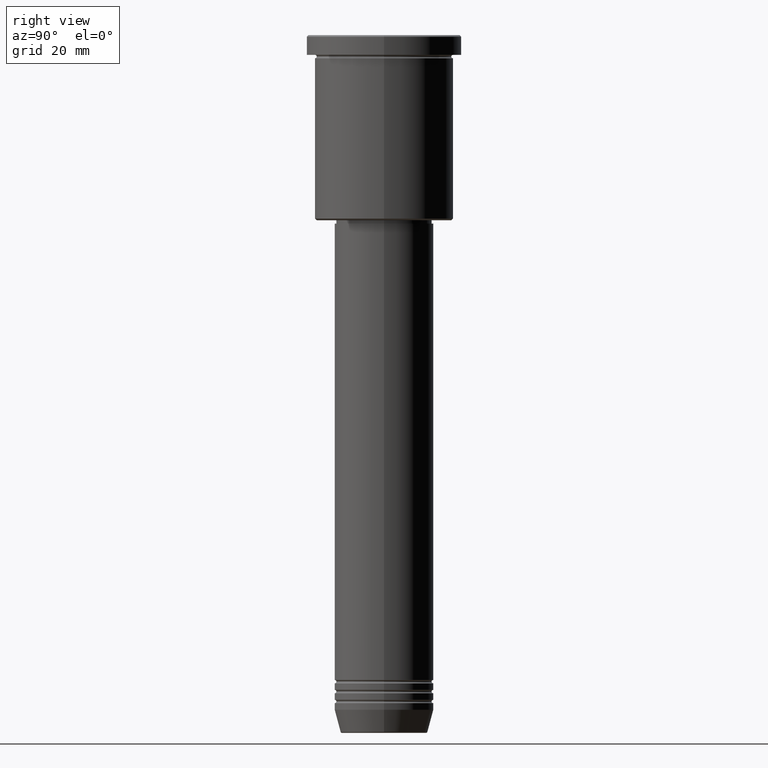
[diagram: clean part render]
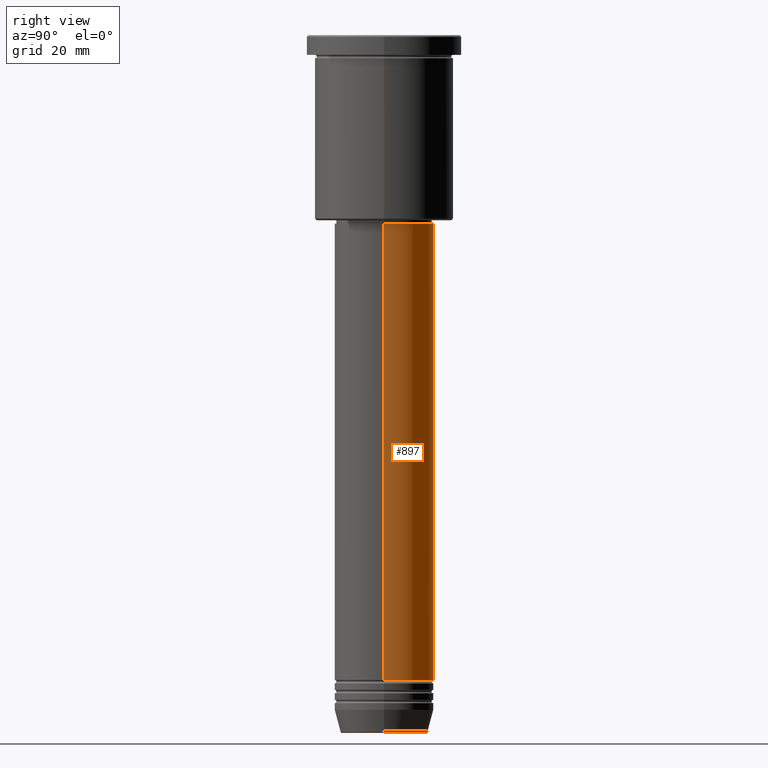
[diagram: same view with one face highlighted and labeled with its STEP entity id]
A machine part, right view. The second image highlights one B-rep face of the part: STEP entity #897.
In plain terms, the highlighted cylindrical surface (partial cylindrical patch) has radius 15 mm, axis along (-0, -0, 1).
Its self-contained STEP definition (entity closure, byte-faithful):
#38 = CIRCLE ( 'NONE', #812, 15.00000000000000000 ) ;
#42 = VERTEX_POINT ( 'NONE', #101 ) ;
#76 = FACE_OUTER_BOUND ( 'NONE', #761, .T. ) ;
#97 = ORIENTED_EDGE ( 'NONE', *, *, #362, .F. ) ;
#101 = CARTESIAN_POINT ( 'NONE',  ( -15.00000000000000000, 1.836970198721029589E-15, -194.9999999999999716 ) ) ;
#129 = DIRECTION ( 'NONE',  ( -0.000000000000000000, -0.000000000000000000, 1.000000000000000000 ) ) ;
#142 = ORIENTED_EDGE ( 'NONE', *, *, #359, .T. ) ;
#151 = LINE ( 'NONE', #628, #1124 ) ;
#165 = DIRECTION ( 'NONE',  ( -0.000000000000000000, -0.000000000000000000, 1.000000000000000000 ) ) ;
#177 = DIRECTION ( 'NONE',  ( 1.000000000000000000, 0.000000000000000000, 0.000000000000000000 ) ) ;
#250 = DIRECTION ( 'NONE',  ( -0.000000000000000000, -0.000000000000000000, 1.000000000000000000 ) ) ;
#359 = EDGE_CURVE ( 'NONE', #779, #42, #969, .T. ) ;
#362 = EDGE_CURVE ( 'NONE', #779, #506, #151, .T. ) ;
#407 = DIRECTION ( 'NONE',  ( 1.000000000000000000, 0.000000000000000000, 0.000000000000000000 ) ) ;
#461 = AXIS2_PLACEMENT_3D ( 'NONE', #792, #250, #972 ) ;
#506 = VERTEX_POINT ( 'NONE', #1152 ) ;
#578 = AXIS2_PLACEMENT_3D ( 'NONE', #978, #165, #177 ) ;
#624 = EDGE_CURVE ( 'NONE', #42, #1158, #665, .T. ) ;
#625 = CYLINDRICAL_SURFACE ( 'NONE', #578, 15.00000000000000000 ) ;
#628 = CARTESIAN_POINT ( 'NONE',  ( 15.00000000000000000, 0.000000000000000000, 0.000000000000000000 ) ) ;
#665 = LINE ( 'NONE', #742, #989 ) ;
#742 = CARTESIAN_POINT ( 'NONE',  ( -15.00000000000000000, 1.836970198721029589E-15, 0.000000000000000000 ) ) ;
#761 = EDGE_LOOP ( 'NONE', ( #142, #871, #1105, #97 ) ) ;
#766 = EDGE_CURVE ( 'NONE', #506, #1158, #38, .T. ) ;
#779 = VERTEX_POINT ( 'NONE', #1141 ) ;
#792 = CARTESIAN_POINT ( 'NONE',  ( 0.000000000000000000, 0.000000000000000000, -194.9999999999999716 ) ) ;
#799 = DIRECTION ( 'NONE',  ( -0.000000000000000000, -0.000000000000000000, 1.000000000000000000 ) ) ;
#812 = AXIS2_PLACEMENT_3D ( 'NONE', #1118, #129, #407 ) ;
#871 = ORIENTED_EDGE ( 'NONE', *, *, #624, .T. ) ;
#897 = ADVANCED_FACE ( 'NONE', ( #76 ), #625, .T. ) ;
#969 = CIRCLE ( 'NONE', #461, 15.00000000000000000 ) ;
#972 = DIRECTION ( 'NONE',  ( 1.000000000000000000, 0.000000000000000000, 0.000000000000000000 ) ) ;
#978 = CARTESIAN_POINT ( 'NONE',  ( 0.000000000000000000, 0.000000000000000000, 0.000000000000000000 ) ) ;
#979 = CARTESIAN_POINT ( 'NONE',  ( -15.00000000000000000, 1.836970198721029589E-15, -57.00000000000000000 ) ) ;
#989 = VECTOR ( 'NONE', #1102, 1000.000000000000000 ) ;
#1102 = DIRECTION ( 'NONE',  ( -0.000000000000000000, -0.000000000000000000, 1.000000000000000000 ) ) ;
#1105 = ORIENTED_EDGE ( 'NONE', *, *, #766, .F. ) ;
#1118 = CARTESIAN_POINT ( 'NONE',  ( 0.000000000000000000, 0.000000000000000000, -57.00000000000000000 ) ) ;
#1124 = VECTOR ( 'NONE', #799, 1000.000000000000000 ) ;
#1141 = CARTESIAN_POINT ( 'NONE',  ( 15.00000000000000000, 0.000000000000000000, -194.9999999999999716 ) ) ;
#1152 = CARTESIAN_POINT ( 'NONE',  ( 15.00000000000000000, 0.000000000000000000, -57.00000000000000000 ) ) ;
#1158 = VERTEX_POINT ( 'NONE', #979 ) ;